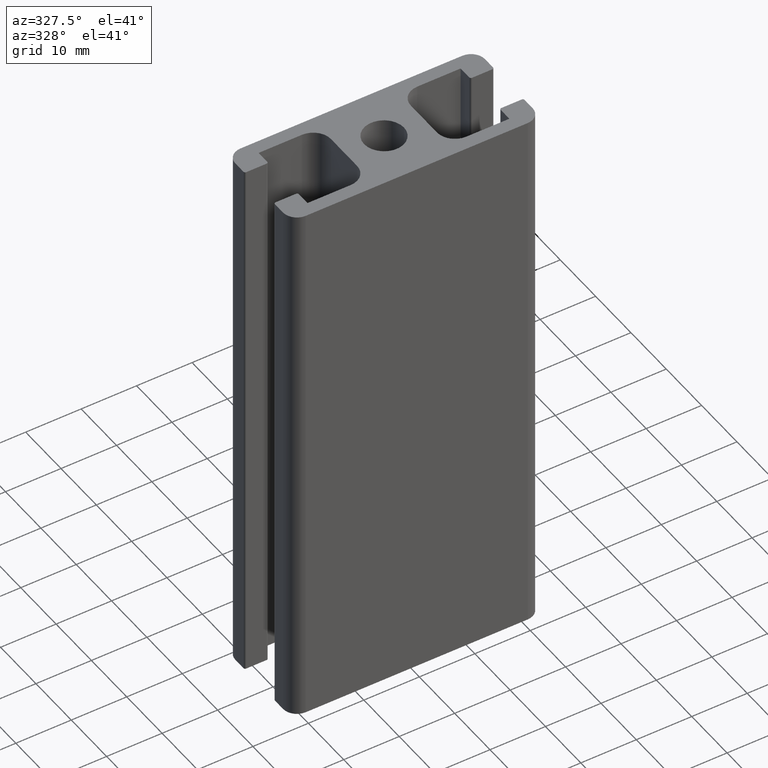
[diagram: clean part render]
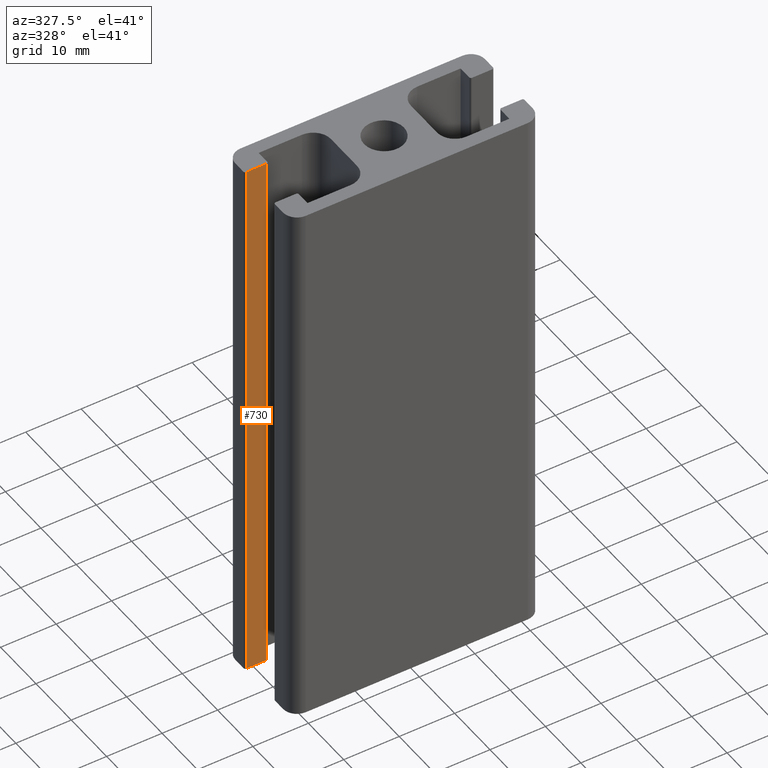
[diagram: same view with one face highlighted and labeled with its STEP entity id]
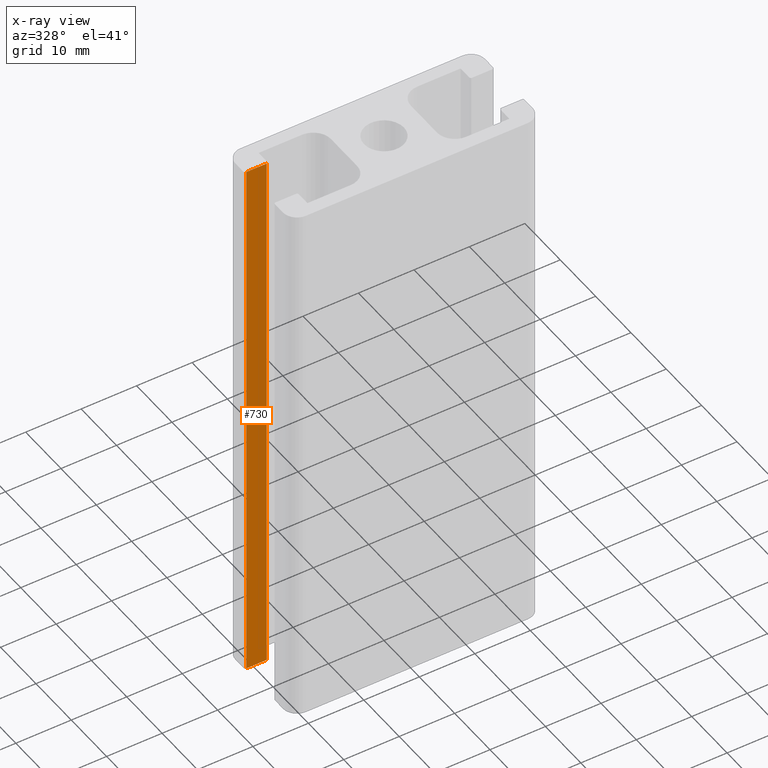
[diagram: x-ray of the same camera — body ghosted, the highlighted face saturated]
A machine part, auxiliary view. The second image highlights one B-rep face of the part: STEP entity #730.
The next image is the same camera in x-ray: the body ghosted, the highlighted face saturated — about 0% of this face is hidden behind the body in this view.
In plain terms, the highlighted planar face has unit normal (-0, 1, 0).
Its self-contained STEP definition (entity closure, byte-faithful):
#15=PLANE('',#775);
#38=LINE('',#1080,#114);
#39=LINE('',#1083,#115);
#40=LINE('',#1085,#116);
#41=LINE('',#1086,#117);
#114=VECTOR('',#857,100.);
#115=VECTOR('',#860,3.7);
#116=VECTOR('',#861,3.7);
#117=VECTOR('',#862,100.);
#194=FACE_OUTER_BOUND('',#234,.T.);
#234=EDGE_LOOP('',(#497,#498,#499,#500));
#310=VERTEX_POINT('',#1074);
#312=VERTEX_POINT('',#1078);
#313=VERTEX_POINT('',#1082);
#314=VERTEX_POINT('',#1084);
#386=EDGE_CURVE('',#312,#310,#38,.T.);
#387=EDGE_CURVE('',#310,#313,#39,.T.);
#388=EDGE_CURVE('',#314,#312,#40,.T.);
#389=EDGE_CURVE('',#314,#313,#41,.T.);
#497=ORIENTED_EDGE('',*,*,#387,.F.);
#498=ORIENTED_EDGE('',*,*,#386,.F.);
#499=ORIENTED_EDGE('',*,*,#388,.F.);
#500=ORIENTED_EDGE('',*,*,#389,.T.);
#730=ADVANCED_FACE('',(#194),#15,.F.);
#775=AXIS2_PLACEMENT_3D('',#1081,#858,#859);
#857=DIRECTION('',(0.,0.,1.));
#858=DIRECTION('center_axis',(-3.20764436033592E-13,1.,0.));
#859=DIRECTION('ref_axis',(0.,0.,1.));
#860=DIRECTION('',(1.,3.20764436033592E-13,0.));
#861=DIRECTION('',(-1.,-3.20764436033592E-13,0.));
#862=DIRECTION('',(0.,0.,1.));
#1074=CARTESIAN_POINT('',(-22.2,4.15000000000001,100.));
#1078=CARTESIAN_POINT('',(-22.2,4.15000000000001,0.));
#1080=CARTESIAN_POINT('',(-22.2,4.15000000000001,0.));
#1081=CARTESIAN_POINT('Origin',(-22.2,4.15000000000001,0.));
#1082=CARTESIAN_POINT('',(-18.5,4.15000000000119,100.));
#1083=CARTESIAN_POINT('',(-11.1000000000007,4.15000000000357,100.));
#1084=CARTESIAN_POINT('',(-18.5,4.15000000000119,0.));
#1085=CARTESIAN_POINT('',(-11.1000000000007,4.15000000000357,0.));
#1086=CARTESIAN_POINT('',(-18.5,4.15000000000119,0.));